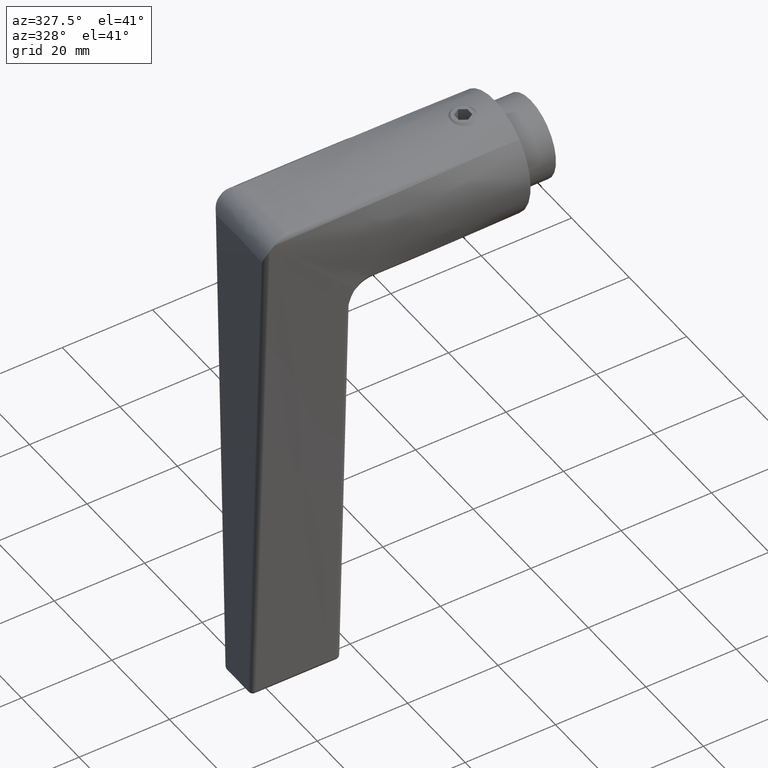
[diagram: clean part render]
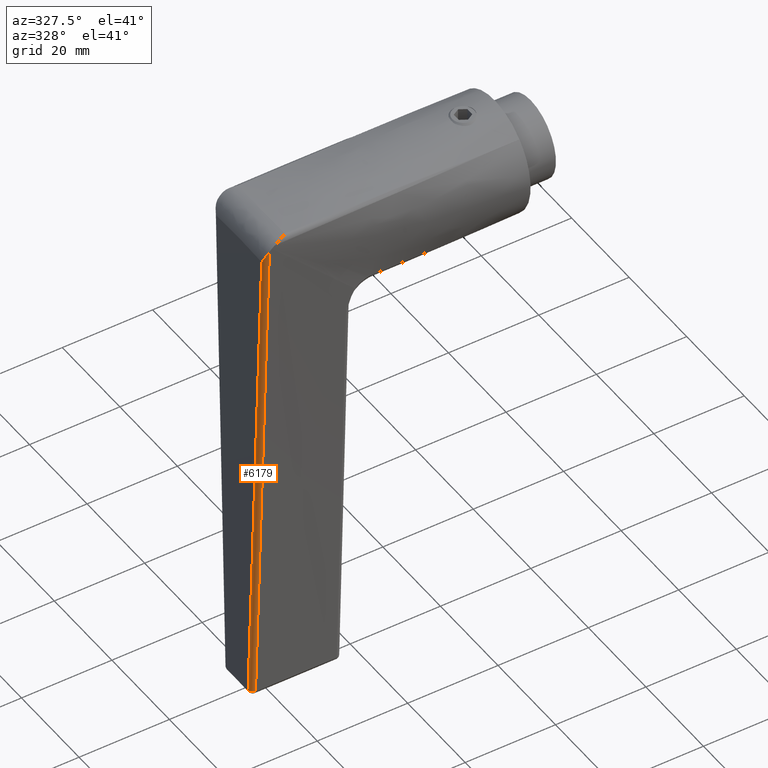
[diagram: same view with one face highlighted and labeled with its STEP entity id]
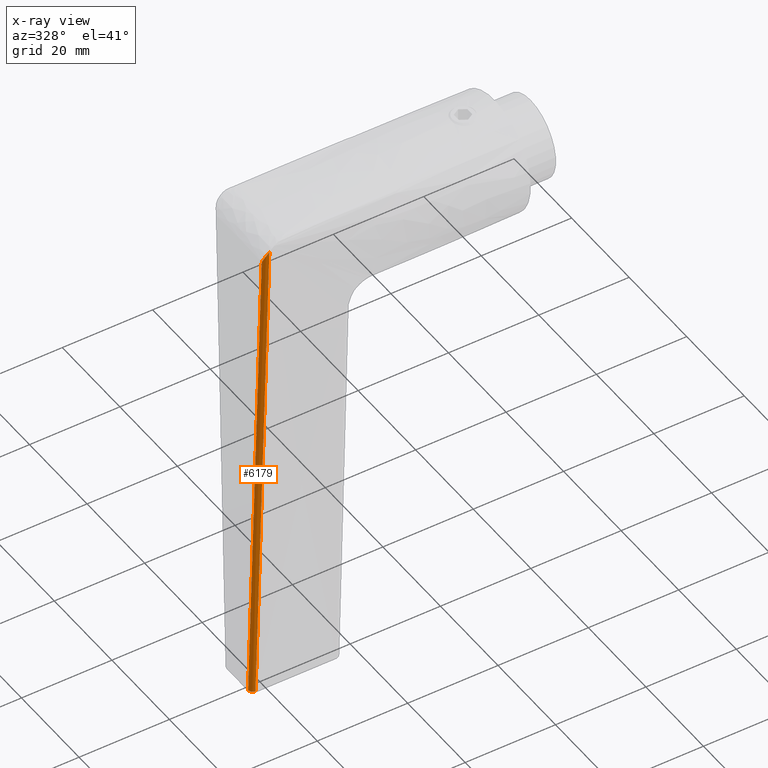
[diagram: x-ray of the same camera — body ghosted, the highlighted face saturated]
A machine part, auxiliary view. The second image highlights one B-rep face of the part: STEP entity #6179.
The next image is the same camera in x-ray: the body ghosted, the highlighted face saturated — about 0% of this face is hidden behind the body in this view.
In plain terms, the highlighted face is a freeform B-spline surface patch.
Its self-contained STEP definition (entity closure, byte-faithful):
#91 = AXIS2_PLACEMENT_3D ( 'NONE', #8684, #8813, #11637 ) ;
#153 = CARTESIAN_POINT ( 'NONE',  ( -4.581871413991475350, 7.849940927420733239, 64.56561929072134376 ) ) ;
#437 = CARTESIAN_POINT ( 'NONE',  ( 54.70181134535189216, 6.631936401507081413, 63.81655132052177493 ) ) ;
#515 = CARTESIAN_POINT ( 'NONE',  ( -7.175461159274545864, 8.947190843267181393, 63.59193144278159338 ) ) ;
#606 = CARTESIAN_POINT ( 'NONE',  ( 103.9960360456202437, 3.786715209398710869, 64.99602041843002098 ) ) ;
#702 = CARTESIAN_POINT ( 'NONE',  ( 103.9960360456202153, 3.786715209398712201, 64.99602041843004940 ) ) ;
#759 = EDGE_LOOP ( 'NONE', ( #2733, #7671, #1083, #1726 ) ) ;
#1068 = CARTESIAN_POINT ( 'NONE',  ( -5.571963293225951297, 8.333736854161237773, 64.46402343351759612 ) ) ;
#1083 = ORIENTED_EDGE ( 'NONE', *, *, #1422, .F. ) ;
#1422 = EDGE_CURVE ( 'NONE', #4144, #9870, #9451, .T. ) ;
#1495 = CARTESIAN_POINT ( 'NONE',  ( 104.0373876373121931, 4.786016032367760076, 63.99633084144252848 ) ) ;
#1541 = CARTESIAN_POINT ( 'NONE',  ( -6.881845437631613827, 8.936204539504137401, 63.59299512170990454 ) ) ;
#1682 = CARTESIAN_POINT ( 'NONE',  ( 29.25371937257150634, 7.584109366835988020, 63.72389286022038846 ) ) ;
#1719 = CARTESIAN_POINT ( 'NONE',  ( 29.48067292205372780, 7.551793109488369460, 64.70064271532372402 ) ) ;
#1726 = ORIENTED_EDGE ( 'NONE', *, *, #6244, .T. ) ;
#1741 = CARTESIAN_POINT ( 'NONE',  ( 12.84227860207309213, 7.197763826998897940, 64.63468834897929582 ) ) ;
#1975 = CARTESIAN_POINT ( 'NONE',  ( -4.828630828888581306, 7.972498523842011409, 64.56464114376011310 ) ) ;
#1997 = CARTESIAN_POINT ( 'NONE',  ( 103.9960360456202153, 3.786715209398712201, 64.99602041843004940 ) ) ;
#2376 = CARTESIAN_POINT ( 'NONE',  ( -6.588229716060983066, 8.925218236944564509, 63.59405883302475360 ) ) ;
#2423 = CARTESIAN_POINT ( 'NONE',  ( 12.06526119320217383, 8.227256477948207802, 63.66166599721055519 ) ) ;
#2733 = ORIENTED_EDGE ( 'NONE', *, *, #11888, .F. ) ;
#3092 = CARTESIAN_POINT ( 'NONE',  ( -6.298669660594057973, 8.651880162803088581, 64.24553009740483844 ) ) ;
#3456 = CARTESIAN_POINT ( 'NONE',  ( -3.923445291679835911, 8.825509243891742628, 63.60371281656726694 ) ) ;
#3499 = CARTESIAN_POINT ( 'NONE',  ( 22.72439876430334138, 7.828423299472163421, 63.70034569731482321 ) ) ;
#3700 = CARTESIAN_POINT ( 'NONE',  ( 83.70802560012069193, 4.545796820130688864, 64.91559906219394804 ) ) ;
#3795 = CIRCLE ( 'NONE', #91, 1.000000000000000222 ) ;
#4000 =( BOUNDED_SURFACE ( )  B_SPLINE_SURFACE ( 3, 2, ( 
 ( #8659, #5578, #5662 ),
 ( #7645, #1719, #1682 ),
 ( #10595, #12597, #8612 ),
 ( #606, #6640, #6509 ) ),
 .UNSPECIFIED., .F., .F., .T. ) 
 B_SPLINE_SURFACE_WITH_KNOTS ( ( 4, 4 ),
 ( 3, 3 ),
 ( 0.05221934481533168498, 0.1644740924404886617 ),
 ( 0.000000000000000000, 1.000000000000000000 ),
 .UNSPECIFIED. ) 
 GEOMETRIC_REPRESENTATION_ITEM ( )  RATIONAL_B_SPLINE_SURFACE ( (
 ( 1.000000000000000000, 0.7200449107702813212, 1.000000000000000000),
 ( 1.000000000000000000, 0.7156104689500867311, 1.000000000000000000),
 ( 1.000000000000000000, 0.7113177884147231511, 1.000000000000000000),
 ( 1.000000000000000000, 0.7071613431071501754, 1.000000000000000000) ) ) 
 REPRESENTATION_ITEM ( '' )  SURFACE ( )  );
#4064 = CARTESIAN_POINT ( 'NONE',  ( -5.077984784449465216, 8.096461282882637889, 64.54426106715911260 ) ) ;
#4144 = VERTEX_POINT ( 'NONE', #9612 ) ;
#4375 = CARTESIAN_POINT ( 'NONE',  ( 104.0373876373121931, 4.786016032367760076, 63.99633084144252848 ) ) ;
#4500 = CARTESIAN_POINT ( 'NONE',  ( 44.04267384030153920, 7.030763261405629905, 63.77778835914715927 ) ) ;
#4602 = CARTESIAN_POINT ( 'NONE',  ( 103.2362737781079574, 3.815141712771852767, 64.99300873267928580 ) ) ;
#5000 = CARTESIAN_POINT ( 'NONE',  ( -6.540329278500449206, 8.745172808664737119, 64.14472408839959883 ) ) ;
#5534 = VERTEX_POINT ( 'NONE', #10647 ) ;
#5578 = CARTESIAN_POINT ( 'NONE',  ( -8.143264421273142872, 8.947645797177115057, 64.55150201431894175 ) ) ;
#5662 = CARTESIAN_POINT ( 'NONE',  ( -8.138115678993450786, 8.983210769705163301, 63.58844420558801147 ) ) ;
#6179 = ADVANCED_FACE ( 'NONE', ( #10296 ), #4000, .T. ) ;
#6244 = EDGE_CURVE ( 'NONE', #4144, #5534, #6295, .T. ) ;
#6295 = B_SPLINE_CURVE_WITH_KNOTS ( 'NONE', 3,
 ( #8048, #11942, #9937, #5000, #3092, #6989, #1068, #4064, #1975, #153 ),
 .UNSPECIFIED., .F., .F.,
 ( 4, 2, 2, 2, 4 ),
 ( 2.845158044380417602E-17, 0.0008265608234348356719, 0.001653121646869642938, 0.002479682470304450312, 0.003306243293739257686 ),
 .UNSPECIFIED. ) ;
#6509 = CARTESIAN_POINT ( 'NONE',  ( 104.0373876373122073, 4.786016032367760076, 63.99633084144248585 ) ) ;
#6640 = CARTESIAN_POINT ( 'NONE',  ( 104.0334185254390604, 4.785861802808808463, 64.99616863291274171 ) ) ;
#6989 = CARTESIAN_POINT ( 'NONE',  ( -5.815456653071444215, 8.446639757024666295, 64.40470385715188684 ) ) ;
#7342 = CARTESIAN_POINT ( 'NONE',  ( 65.36094886304795182, 6.233113848111496935, 63.85535504774742321 ) ) ;
#7618 = CARTESIAN_POINT ( 'NONE',  ( 102.4765115148561847, 3.843568330018516388, 64.98999704694539048 ) ) ;
#7645 = CARTESIAN_POINT ( 'NONE',  ( 29.21246087945256775, 6.585018897563776896, 64.69957949559808696 ) ) ;
#7671 = ORIENTED_EDGE ( 'NONE', *, *, #12746, .T. ) ;
#8048 = CARTESIAN_POINT ( 'NONE',  ( -7.469076880990857426, 8.958177148206239337, 63.59086779625715025 ) ) ;
#8612 = CARTESIAN_POINT ( 'NONE',  ( 66.64555313165723760, 6.185027868718622202, 63.85986748227867338 ) ) ;
#8659 = CARTESIAN_POINT ( 'NONE',  ( -8.179310933145014673, 7.984592139101904351, 64.55135909670910621 ) ) ;
#8684 = CARTESIAN_POINT ( 'NONE',  ( 103.9999999999999574, 3.786715240298769380, 63.99602827492807933 ) ) ;
#8813 = DIRECTION ( 'NONE',  ( -0.9992929529741526595, 0.03738854338145536360, -0.003961181643288186859 ) ) ;
#9303 = CARTESIAN_POINT ( 'NONE',  ( 91.14524131073089563, 5.268374428132763576, 63.94928031233671106 ) ) ;
#9425 = CARTESIAN_POINT ( 'NONE',  ( -7.469076880990857426, 8.958177148206239337, 63.59086779625715025 ) ) ;
#9451 = B_SPLINE_CURVE_WITH_KNOTS ( 'NONE', 3,
 ( #9425, #515, #1541, #2376, #3456, #11396, #12396, #2423, #3499, #10422, #4500, #437, #7342, #12430, #9303, #4375 ),
 .UNSPECIFIED., .F., .F.,
 ( 4, 3, 3, 3, 3, 4 ),
 ( 0.001118530658212051878, 0.002000000000000062058, 0.01000000000000780126, 0.04200000000050911619, 0.07400000000099543618, 0.1127037579910935422 ),
 .UNSPECIFIED. ) ;
#9612 = CARTESIAN_POINT ( 'NONE',  ( -7.469076880990857426, 8.958177148206239337, 63.59086779625715025 ) ) ;
#9621 = CARTESIAN_POINT ( 'NONE',  ( 101.7167492558676543, 3.871995061210234290, 64.98698536122839187 ) ) ;
#9662 = CARTESIAN_POINT ( 'NONE',  ( -4.581871413991475350, 7.849940927420733239, 64.56561929072134376 ) ) ;
#9870 = VERTEX_POINT ( 'NONE', #1495 ) ;
#9937 = CARTESIAN_POINT ( 'NONE',  ( -7.014990284390352215, 8.891056666919897822, 63.89918839305677523 ) ) ;
#10296 = FACE_OUTER_BOUND ( 'NONE', #759, .T. ) ;
#10422 = CARTESIAN_POINT ( 'NONE',  ( 33.38353630230394486, 7.429593280438840708, 63.73906702823099835 ) ) ;
#10595 = CARTESIAN_POINT ( 'NONE',  ( 66.60424329892966000, 5.185729043222000456, 64.84779993654130692 ) ) ;
#10615 = CARTESIAN_POINT ( 'NONE',  ( 65.69930433987501317, 5.219662607837230794, 64.84421277265721528 ) ) ;
#10633 = VERTEX_POINT ( 'NONE', #1997 ) ;
#10647 = CARTESIAN_POINT ( 'NONE',  ( -4.581871413991475350, 7.849940927420733239, 64.56561929072134376 ) ) ;
#11218 = B_SPLINE_CURVE_WITH_KNOTS ( 'NONE', 3,
 ( #702, #4602, #7618, #9621, #3700, #10615, #11625, #12618, #1741, #9662 ),
 .UNSPECIFIED., .F., .F.,
 ( 4, 3, 3, 4 ),
 ( 0.001004674303419063417, 0.003285573809167652987, 0.05734997145442791155, 0.1096594350688305658 ),
 .UNSPECIFIED. ) ;
#11396 = CARTESIAN_POINT ( 'NONE',  ( -1.258660873251449264, 8.725800350000019634, 63.61336946777635148 ) ) ;
#11625 = CARTESIAN_POINT ( 'NONE',  ( 47.69058550912203032, 5.893593314214817802, 64.77282649275295512 ) ) ;
#11637 = DIRECTION ( 'NONE',  ( 0.03738883671597358765, 0.9993007929992981930, 0.000000000000000000 ) ) ;
#11888 = EDGE_CURVE ( 'NONE', #10633, #5534, #11218, .T. ) ;
#11942 = CARTESIAN_POINT ( 'NONE',  ( -7.244770066538349873, 8.943701649369902640, 63.75652145018545269 ) ) ;
#12396 = CARTESIAN_POINT ( 'NONE',  ( 1.406123540023608953, 8.626091575590242755, 63.62302877366312970 ) ) ;
#12430 = CARTESIAN_POINT ( 'NONE',  ( 78.25309507743200754, 5.750740986007619071, 63.90228786236076530 ) ) ;
#12597 = CARTESIAN_POINT ( 'NONE',  ( 66.85968528989906190, 6.165022071415130256, 64.84881253464003237 ) ) ;
#12618 = CARTESIAN_POINT ( 'NONE',  ( 30.26643091852597678, 6.545648183949362320, 64.70375741635784550 ) ) ;
#12746 = EDGE_CURVE ( 'NONE', #10633, #9870, #3795, .T. ) ;